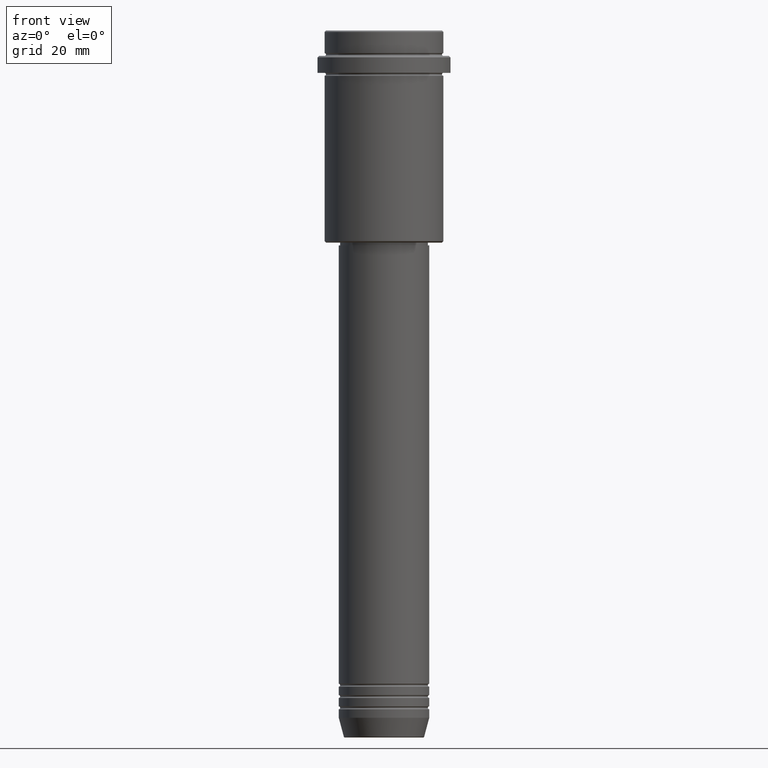
[diagram: clean part render]
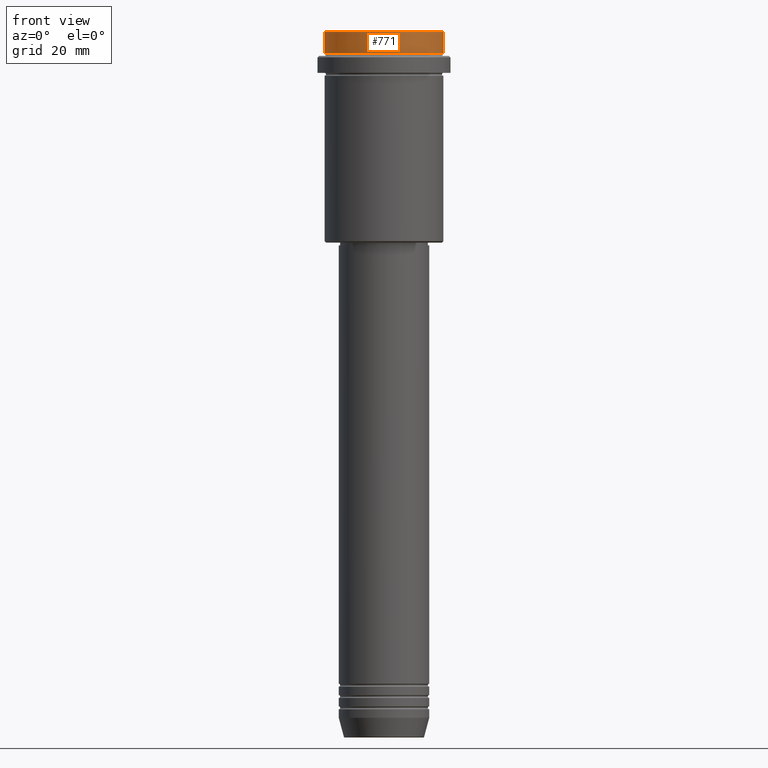
[diagram: same view with one face highlighted and labeled with its STEP entity id]
A machine part, front view. The second image highlights one B-rep face of the part: STEP entity #771.
In plain terms, the highlighted cylindrical surface (partial cylindrical patch) has radius 21 mm, axis along (-0, -0, 1).
Its self-contained STEP definition (entity closure, byte-faithful):
#40 = VECTOR ( 'NONE', #901, 1000.000000000000000 ) ;
#71 = EDGE_CURVE ( 'NONE', #1170, #640, #101, .T. ) ;
#101 = LINE ( 'NONE', #1305, #911 ) ;
#113 = LINE ( 'NONE', #679, #40 ) ;
#168 = AXIS2_PLACEMENT_3D ( 'NONE', #896, #1105, #582 ) ;
#303 = CARTESIAN_POINT ( 'NONE',  ( 21.00000000000000000, 0.000000000000000000, -0.4999999999999553690 ) ) ;
#390 = ORIENTED_EDGE ( 'NONE', *, *, #661, .T. ) ;
#424 = EDGE_CURVE ( 'NONE', #1049, #640, #1326, .T. ) ;
#439 = AXIS2_PLACEMENT_3D ( 'NONE', #1373, #498, #929 ) ;
#467 = DIRECTION ( 'NONE',  ( 0.000000000000000000, 0.000000000000000000, -1.000000000000000000 ) ) ;
#498 = DIRECTION ( 'NONE',  ( -0.000000000000000000, -0.000000000000000000, 1.000000000000000000 ) ) ;
#513 = FACE_OUTER_BOUND ( 'NONE', #1312, .T. ) ;
#520 = VERTEX_POINT ( 'NONE', #1006 ) ;
#545 = ORIENTED_EDGE ( 'NONE', *, *, #424, .T. ) ;
#557 = DIRECTION ( 'NONE',  ( -0.000000000000000000, -0.000000000000000000, 1.000000000000000000 ) ) ;
#577 = CARTESIAN_POINT ( 'NONE',  ( 0.000000000000000000, 0.000000000000000000, -0.4999999999999553690 ) ) ;
#582 = DIRECTION ( 'NONE',  ( 1.000000000000000000, 0.000000000000000000, 0.000000000000000000 ) ) ;
#630 = ORIENTED_EDGE ( 'NONE', *, *, #712, .T. ) ;
#640 = VERTEX_POINT ( 'NONE', #883 ) ;
#661 = EDGE_CURVE ( 'NONE', #1170, #520, #1275, .T. ) ;
#679 = CARTESIAN_POINT ( 'NONE',  ( 21.00000000000000000, 0.000000000000000000, 0.000000000000000000 ) ) ;
#712 = EDGE_CURVE ( 'NONE', #520, #1049, #113, .T. ) ;
#714 = ORIENTED_EDGE ( 'NONE', *, *, #71, .F. ) ;
#771 = ADVANCED_FACE ( 'NONE', ( #513 ), #1126, .T. ) ;
#883 = CARTESIAN_POINT ( 'NONE',  ( -21.00000000000000000, 2.571758278209441661E-15, -0.4999999999999553690 ) ) ;
#896 = CARTESIAN_POINT ( 'NONE',  ( 0.000000000000000000, 0.000000000000000000, -7.999999999999998224 ) ) ;
#899 = DIRECTION ( 'NONE',  ( 1.000000000000000000, 0.000000000000000000, 0.000000000000000000 ) ) ;
#901 = DIRECTION ( 'NONE',  ( -0.000000000000000000, -0.000000000000000000, 1.000000000000000000 ) ) ;
#911 = VECTOR ( 'NONE', #557, 1000.000000000000000 ) ;
#929 = DIRECTION ( 'NONE',  ( 1.000000000000000000, 0.000000000000000000, 0.000000000000000000 ) ) ;
#1006 = CARTESIAN_POINT ( 'NONE',  ( 21.00000000000000000, 0.000000000000000000, -7.999999999999998224 ) ) ;
#1049 = VERTEX_POINT ( 'NONE', #303 ) ;
#1105 = DIRECTION ( 'NONE',  ( -0.000000000000000000, -0.000000000000000000, 1.000000000000000000 ) ) ;
#1126 = CYLINDRICAL_SURFACE ( 'NONE', #439, 21.00000000000000000 ) ;
#1170 = VERTEX_POINT ( 'NONE', #1223 ) ;
#1184 = AXIS2_PLACEMENT_3D ( 'NONE', #577, #467, #899 ) ;
#1223 = CARTESIAN_POINT ( 'NONE',  ( -21.00000000000000000, 2.571758278209441661E-15, -7.999999999999998224 ) ) ;
#1275 = CIRCLE ( 'NONE', #168, 21.00000000000000000 ) ;
#1305 = CARTESIAN_POINT ( 'NONE',  ( -21.00000000000000000, 2.571758278209441661E-15, 0.000000000000000000 ) ) ;
#1312 = EDGE_LOOP ( 'NONE', ( #714, #390, #630, #545 ) ) ;
#1326 = CIRCLE ( 'NONE', #1184, 21.00000000000000000 ) ;
#1373 = CARTESIAN_POINT ( 'NONE',  ( 0.000000000000000000, 0.000000000000000000, 0.000000000000000000 ) ) ;